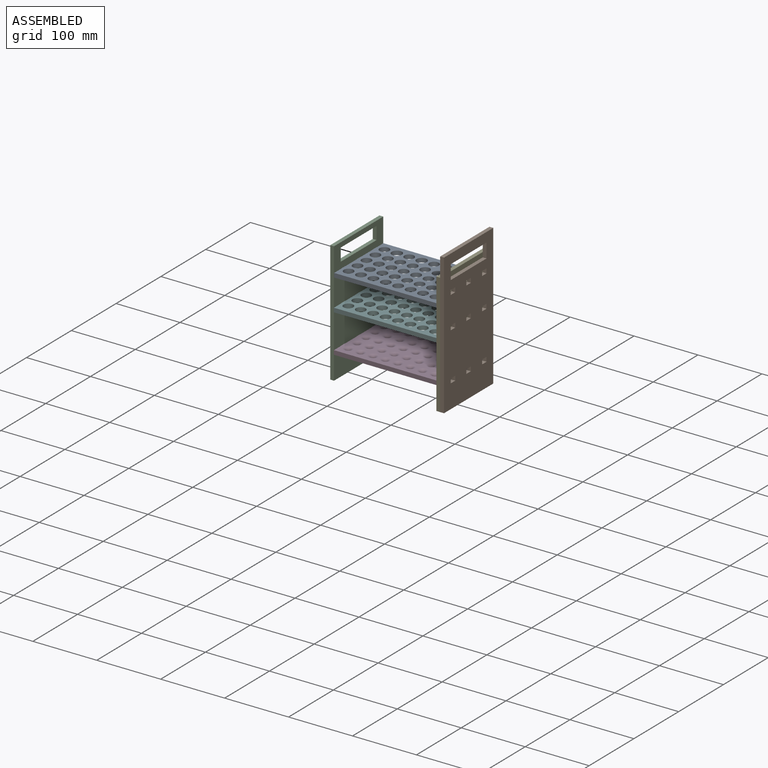
[diagram: assembled view]
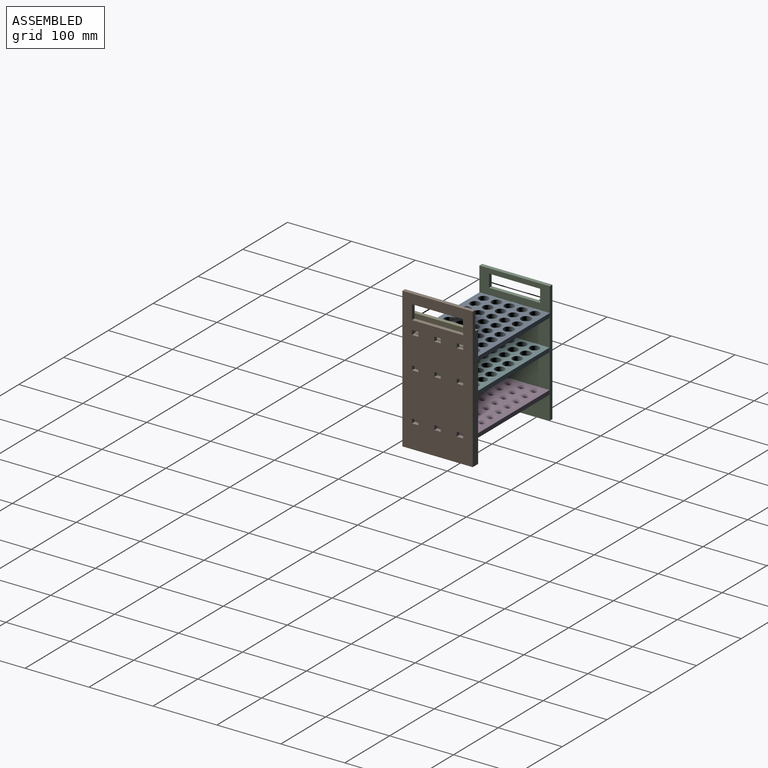
[diagram: assembled view, second angle]
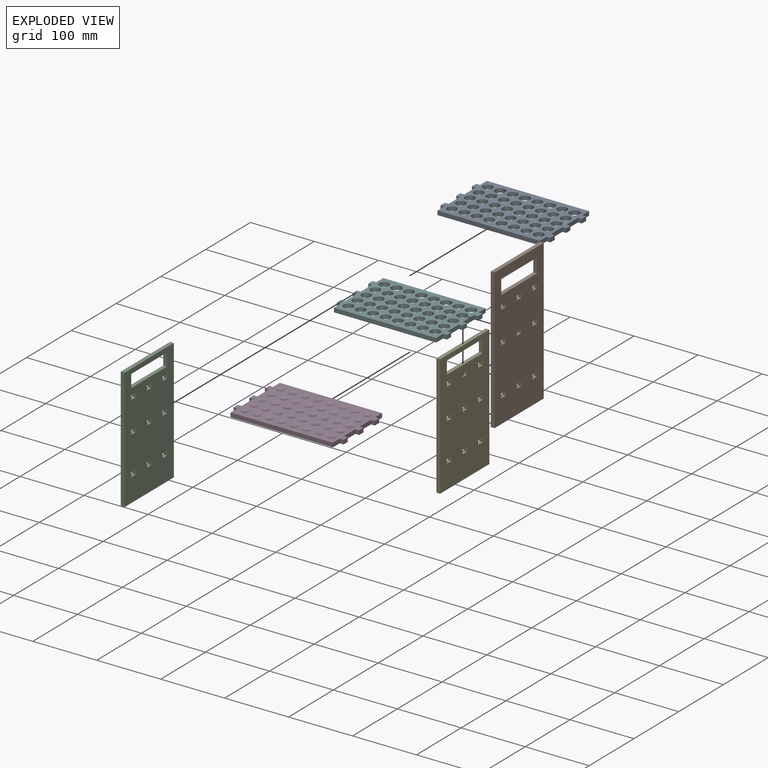
[diagram: exploded view]
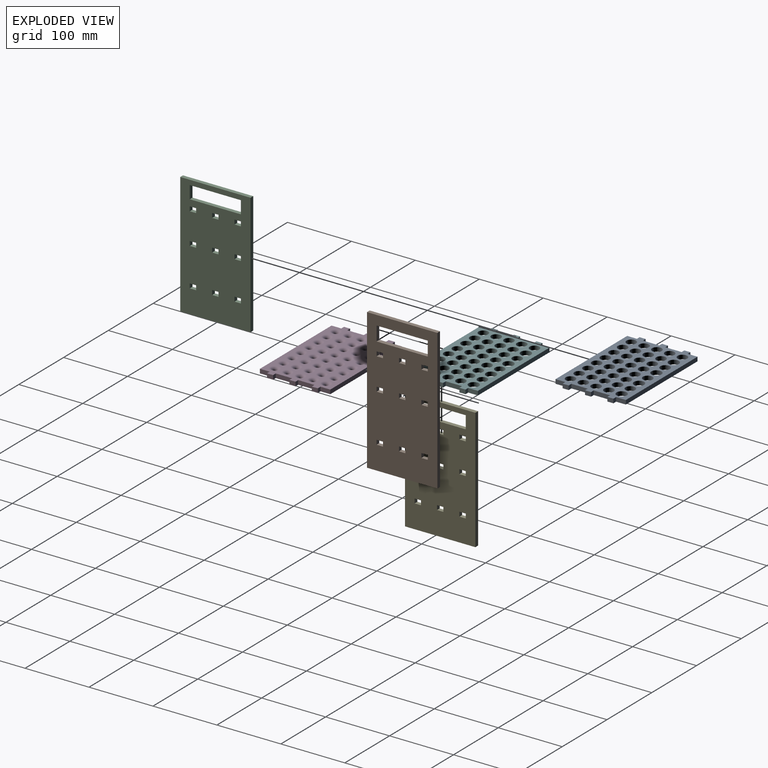
[diagram: exploded view, second angle]
ASSEMBLY  parts=6 mates=5
PART A: 70 faces, bbox 172x110x6.5 mm
  f0: plane 172x110mm, normal (0,0,1), area 10778mm2, adj f2,f3,f4,f5,f6,f7,f8,f9
  f1: plane 172x110mm, normal (0,0,-1), area 10778mm2, adj f2,f3,f4,f5,f6,f7,f8,f9
  f2: plane 15.25x6.5mm, normal (1,0,0), area 99.1mm2, adj f0,f1,f8,f27
  f3: plane 25.5x6.5mm, normal (1,0,0), area 165.7mm2, adj f0,f1,f25,f28
  f4: plane 25.5x6.5mm, normal (1,0,0), area 165.7mm2, adj f0,f1,f21,f24
  f5: plane 25.5x6.5mm, normal (-1,0,0), area 165.7mm2, adj f0,f1,f16,f19
  f6: plane 25.5x6.5mm, normal (-1,0,0), area 165.7mm2, adj f0,f1,f12,f15
  f7: plane 15.25x6.5mm, normal (-1,0,0), area 99.1mm2, adj f0,f1,f8,f13
  f8: plane 160x6.5mm, normal (0,1,0), area 1040mm2, adj f0,f1,f2,f7
  f9: plane 15.25x6.5mm, normal (-1,0,0), area 99.1mm2, adj f0,f1,f10,f18
  f10: plane 160x6.5mm, normal (0,-1,0), area 1040mm2, adj f0,f1,f9,f11
  f11: plane 15.25x6.5mm, normal (1,0,0), area 99.1mm2, adj f0,f1,f10,f22
  f12: plane 6.5x6mm, normal (0,-1,0), area 39mm2, adj f0,f1,f6,f14
  f13: plane 6.5x6mm, normal (0,1,0), area 39mm2, adj f0,f1,f7,f14
  f14: plane 9.5x6.5mm, normal (-1,0,0), area 61.7mm2, adj f0,f1,f12,f13
  f15: plane 6.5x6mm, normal (0,1,0), area 39mm2, adj f0,f1,f6,f17
  f16: plane 6.5x6mm, normal (0,-1,0), area 39mm2, adj f0,f1,f5,f17
  f17: plane 9.5x6.5mm, normal (-1,0,0), area 61.8mm2, adj f0,f1,f15,f16
  f18: plane 6.5x6mm, normal (0,-1,0), area 39mm2, adj f0,f1,f9,f20
  f19: plane 6.5x6mm, normal (0,1,0), area 39mm2, adj f0,f1,f5,f20
  f20: plane 9.5x6.5mm, normal (-1,0,0), area 61.8mm2, adj f0,f1,f18,f19
  f21: plane 6.5x6mm, normal (0,1,0), area 39mm2, adj f0,f1,f4,f23
  f22: plane 6.5x6mm, normal (0,-1,0), area 39mm2, adj f0,f1,f11,f23
  f23: plane 9.5x6.5mm, normal (1,0,0), area 61.7mm2, adj f0,f1,f21,f22
  f24: plane 6.5x6mm, normal (0,-1,0), area 39mm2, adj f0,f1,f4,f26
  f25: plane 6.5x6mm, normal (0,1,0), area 39mm2, adj f0,f1,f3,f26
  f26: plane 9.5x6.5mm, normal (1,0,0), area 61.8mm2, adj f0,f1,f24,f25
  f27: plane 6.5x6mm, normal (0,1,0), area 39mm2, adj f0,f1,f2,f29
  f28: plane 6.5x6mm, normal (0,-1,0), area 39mm2, adj f0,f1,f3,f29
  f29: plane 9.5x6.5mm, normal (1,0,0), area 61.8mm2, adj f0,f1,f27,f28
  f30: cylinder r=7.5mm len=15mm, axis (0,0,1), area 306.3mm2, adj f0,f1
  f31: cylinder r=7.5mm len=15mm, axis (0,0,1), area 306.3mm2, adj f0,f1
  f32: cylinder r=7.5mm len=15mm, axis (0,0,1), area 306.3mm2, adj f0,f1
  f33: cylinder r=7.5mm len=15mm, axis (0,0,1), area 306.3mm2, adj f0,f1
  f34: cylinder r=7.5mm len=15mm, axis (0,0,1), area 306.3mm2, adj f0,f1
  f35: cylinder r=7.5mm len=15mm, axis (0,0,1), area 306.3mm2, adj f0,f1
  f36: cylinder r=7.5mm len=15mm, axis (0,0,1), area 306.3mm2, adj f0,f1
  f37: cylinder r=7.5mm len=15mm, axis (0,0,1), area 306.3mm2, adj f0,f1
  f38: cylinder r=7.5mm len=15mm, axis (0,0,1), area 306.3mm2, adj f0,f1
  f39: cylinder r=7.5mm len=15mm, axis (0,0,1), area 306.3mm2, adj f0,f1
  f40: cylinder r=7.5mm len=15mm, axis (0,0,1), area 306.3mm2, adj f0,f1
  f41: cylinder r=7.5mm len=15mm, axis (0,0,1), area 306.3mm2, adj f0,f1
  f42: cylinder r=7.5mm len=15mm, axis (0,0,1), area 306.3mm2, adj f0,f1
  f43: cylinder r=7.5mm len=15mm, axis (0,0,1), area 306.3mm2, adj f0,f1
  f44: cylinder r=7.5mm len=15mm, axis (0,0,1), area 306.3mm2, adj f0,f1
  f45: cylinder r=7.5mm len=15mm, axis (0,0,1), area 306.3mm2, adj f0,f1
  f46: cylinder r=7.5mm len=15mm, axis (0,0,1), area 306.3mm2, adj f0,f1
  f47: cylinder r=7.99mm len=15.98mm, axis (0,0,1), area 326.3mm2, adj f0,f1
  f48: cylinder r=7.5mm len=15mm, axis (0,0,1), area 306.3mm2, adj f0,f1
  f49: cylinder r=7.99mm len=15.98mm, axis (0,0,1), area 326.3mm2, adj f0,f1
  f50: cylinder r=7.5mm len=15mm, axis (0,0,1), area 306.3mm2, adj f0,f1
  f51: cylinder r=7.99mm len=15.98mm, axis (0,0,1), area 326.3mm2, adj f0,f1
  f52: cylinder r=7.5mm len=15mm, axis (0,0,1), area 306.3mm2, adj f0,f1
  f53: cylinder r=7.99mm len=15.98mm, axis (0,0,1), area 326.3mm2, adj f0,f1
  f54: cylinder r=7.5mm len=15mm, axis (0,0,1), area 306.3mm2, adj f0,f1
  f55: cylinder r=7.5mm len=15mm, axis (0,0,1), area 306.3mm2, adj f0,f1
  f56: cylinder r=7.5mm len=15mm, axis (0,0,1), area 306.3mm2, adj f0,f1
  f57: cylinder r=7.5mm len=15mm, axis (0,0,1), area 306.3mm2, adj f0,f1
  f58: cylinder r=7.5mm len=15mm, axis (0,0,1), area 306.3mm2, adj f0,f1
  f59: cylinder r=7.5mm len=15mm, axis (0,0,1), area 306.3mm2, adj f0,f1
  f60: cylinder r=7.5mm len=15mm, axis (0,0,1), area 306.3mm2, adj f0,f1
  f61: cylinder r=7.5mm len=15mm, axis (0,0,1), area 306.3mm2, adj f0,f1
  f62: cylinder r=7.5mm len=15mm, axis (0,0,1), area 306.3mm2, adj f0,f1
  f63: cylinder r=7.5mm len=15mm, axis (0,0,1), area 306.3mm2, adj f0,f1
  f64: cylinder r=7.5mm len=15mm, axis (0,0,1), area 306.3mm2, adj f0,f1
  f65: cylinder r=7.5mm len=15mm, axis (0,0,1), area 306.3mm2, adj f0,f1
  f66: cylinder r=7.5mm len=15mm, axis (0,0,1), area 306.3mm2, adj f0,f1
  f67: cylinder r=7.5mm len=15mm, axis (0,0,1), area 306.3mm2, adj f0,f1
  f68: cylinder r=7.5mm len=15mm, axis (0,0,1), area 306.3mm2, adj f0,f1
  f69: cylinder r=7.5mm len=15mm, axis (0,0,1), area 306.3mm2, adj f0,f1
PART B: 46 faces, bbox 6x110x220 mm
  f0: plane 7x6mm, normal (0,-1,0), area 42mm2, adj f1,f43,f44,f45
  f1: plane 10x6mm, normal (0,0,1), area 60mm2, adj f0,f2,f44,f45
  f2: plane 7x6mm, normal (0,1,0), area 42mm2, adj f1,f43,f44,f45
  f3: plane 7x6mm, normal (0,-1,0), area 42mm2, adj f4,f33,f44,f45
  f4: plane 10x6mm, normal (0,0,1), area 60mm2, adj f3,f5,f44,f45
  f5: plane 7x6mm, normal (0,1,0), area 42mm2, adj f4,f33,f44,f45
  f6: plane 7x6mm, normal (0,-1,0), area 42mm2, adj f7,f34,f44,f45
  f7: plane 10x6mm, normal (0,0,1), area 60mm2, adj f6,f8,f44,f45
  f8: plane 7x6mm, normal (0,1,0), area 42mm2, adj f7,f34,f44,f45
  f9: plane 7x6mm, normal (0,1,0), area 42mm2, adj f10,f35,f44,f45
  f10: plane 10x6mm, normal (0,0,-1), area 60mm2, adj f9,f11,f44,f45
  f11: plane 7x6mm, normal (0,-1,0), area 42mm2, adj f10,f35,f44,f45
  f12: plane 7x6mm, normal (0,1,0), area 42mm2, adj f13,f36,f44,f45
  f13: plane 10x6mm, normal (0,0,-1), area 60mm2, adj f12,f14,f44,f45
  f14: plane 7x6mm, normal (0,-1,0), area 42mm2, adj f13,f36,f44,f45
  f15: plane 7x6mm, normal (0,1,0), area 42mm2, adj f16,f37,f44,f45
  f16: plane 10x6mm, normal (0,0,-1), area 60mm2, adj f15,f17,f44,f45
  f17: plane 7x6mm, normal (0,-1,0), area 42mm2, adj f16,f37,f44,f45
  f18: plane 7x6mm, normal (0,1,0), area 42mm2, adj f19,f38,f44,f45
  f19: plane 10x6mm, normal (0,0,-1), area 60mm2, adj f18,f20,f44,f45
  f20: plane 7x6mm, normal (0,-1,0), area 42mm2, adj f19,f38,f44,f45
  f21: plane 7x6mm, normal (0,1,0), area 42mm2, adj f22,f39,f44,f45
  f22: plane 10x6mm, normal (0,0,-1), area 60mm2, adj f21,f23,f44,f45
  f23: plane 7x6mm, normal (0,-1,0), area 42mm2, adj f22,f39,f44,f45
  f24: plane 7x6mm, normal (0,1,0), area 42mm2, adj f25,f40,f44,f45
  f25: plane 10x6mm, normal (0,0,-1), area 60mm2, adj f24,f26,f44,f45
  f26: plane 7x6mm, normal (0,-1,0), area 42mm2, adj f25,f40,f44,f45
  f27: plane 110x6mm, normal (0,0,1), area 660mm2, adj f28,f41,f44,f45
  f28: plane 220x6mm, normal (0,-1,0), area 1320mm2, adj f27,f29,f44,f45
  f29: plane 110x6mm, normal (0,0,-1), area 660mm2, adj f28,f41,f44,f45
  f30: plane 80x6mm, normal (0,0,1), area 480mm2, adj f31,f42,f44,f45
  f31: plane 22.5x6mm, normal (0,1,0), area 135mm2, adj f30,f32,f44,f45
  f32: plane 80x6mm, normal (0,0,-1), area 480mm2, adj f31,f42,f44,f45
  f33: plane 10x6mm, normal (0,0,-1), area 60mm2, adj f3,f5,f44,f45
  f34: plane 10x6mm, normal (0,0,-1), area 60mm2, adj f6,f8,f44,f45
  f35: plane 10x6mm, normal (0,0,1), area 60mm2, adj f9,f11,f44,f45
  f36: plane 10x6mm, normal (0,0,1), area 60mm2, adj f12,f14,f44,f45
  f37: plane 10x6mm, normal (0,0,1), area 60mm2, adj f15,f17,f44,f45
  f38: plane 10x6mm, normal (0,0,1), area 60mm2, adj f18,f20,f44,f45
  f39: plane 10x6mm, normal (0,0,1), area 60mm2, adj f21,f23,f44,f45
  f40: plane 10x6mm, normal (0,0,1), area 60mm2, adj f24,f26,f44,f45
  f41: plane 220x6mm, normal (0,1,0), area 1320mm2, adj f27,f29,f44,f45
  f42: plane 22.5x6mm, normal (0,-1,0), area 135mm2, adj f30,f32,f44,f45
  f43: plane 10x6mm, normal (0,0,-1), area 60mm2, adj f0,f2,f44,f45
  f44: plane 220x110mm, normal (1,0,0), area 21770mm2, adj f0,f1,f2,f3,f4,f5,f6,f7
  f45: plane 220x110mm, normal (-1,0,0), area 21770mm2, adj f0,f1,f2,f3,f4,f5,f6,f7
PART C: 46 faces, bbox 6x110x190 mm
  f0: plane 7x6mm, normal (0,-1,0), area 42mm2, adj f1,f43,f44,f45
  f1: plane 10x6mm, normal (0,0,1), area 60mm2, adj f0,f2,f44,f45
  f2: plane 7x6mm, normal (0,1,0), area 42mm2, adj f1,f43,f44,f45
  f3: plane 7x6mm, normal (0,-1,0), area 42mm2, adj f4,f33,f44,f45
  f4: plane 10x6mm, normal (0,0,1), area 60mm2, adj f3,f5,f44,f45
  f5: plane 7x6mm, normal (0,1,0), area 42mm2, adj f4,f33,f44,f45
  f6: plane 7x6mm, normal (0,-1,0), area 42mm2, adj f7,f34,f44,f45
  f7: plane 10x6mm, normal (0,0,1), area 60mm2, adj f6,f8,f44,f45
  f8: plane 7x6mm, normal (0,1,0), area 42mm2, adj f7,f34,f44,f45
  f9: plane 7x6mm, normal (0,1,0), area 42mm2, adj f10,f35,f44,f45
  f10: plane 10x6mm, normal (0,0,-1), area 60mm2, adj f9,f11,f44,f45
  f11: plane 7x6mm, normal (0,-1,0), area 42mm2, adj f10,f35,f44,f45
  f12: plane 7x6mm, normal (0,1,0), area 42mm2, adj f13,f36,f44,f45
  f13: plane 10x6mm, normal (0,0,-1), area 60mm2, adj f12,f14,f44,f45
  f14: plane 7x6mm, normal (0,-1,0), area 42mm2, adj f13,f36,f44,f45
  f15: plane 7x6mm, normal (0,1,0), area 42mm2, adj f16,f37,f44,f45
  f16: plane 10x6mm, normal (0,0,-1), area 60mm2, adj f15,f17,f44,f45
  f17: plane 7x6mm, normal (0,-1,0), area 42mm2, adj f16,f37,f44,f45
  f18: plane 7x6mm, normal (0,1,0), area 42mm2, adj f19,f38,f44,f45
  f19: plane 10x6mm, normal (0,0,-1), area 60mm2, adj f18,f20,f44,f45
  f20: plane 7x6mm, normal (0,-1,0), area 42mm2, adj f19,f38,f44,f45
  f21: plane 7x6mm, normal (0,1,0), area 42mm2, adj f22,f39,f44,f45
  f22: plane 10x6mm, normal (0,0,-1), area 60mm2, adj f21,f23,f44,f45
  f23: plane 7x6mm, normal (0,-1,0), area 42mm2, adj f22,f39,f44,f45
  f24: plane 7x6mm, normal (0,1,0), area 42mm2, adj f25,f40,f44,f45
  f25: plane 10x6mm, normal (0,0,-1), area 60mm2, adj f24,f26,f44,f45
  f26: plane 7x6mm, normal (0,-1,0), area 42mm2, adj f25,f40,f44,f45
  f27: plane 110x6mm, normal (0,0,1), area 660mm2, adj f28,f41,f44,f45
  f28: plane 190x6mm, normal (0,-1,0), area 1140mm2, adj f27,f29,f44,f45
  f29: plane 110x6mm, normal (0,0,-1), area 660mm2, adj f28,f41,f44,f45
  f30: plane 20x6mm, normal (0,1,0), area 120mm2, adj f31,f42,f44,f45
  f31: plane 80x6mm, normal (0,0,-1), area 480mm2, adj f30,f32,f44,f45
  f32: plane 20x6mm, normal (0,-1,0), area 120mm2, adj f31,f42,f44,f45
  f33: plane 10x6mm, normal (0,0,-1), area 60mm2, adj f3,f5,f44,f45
  f34: plane 10x6mm, normal (0,0,-1), area 60mm2, adj f6,f8,f44,f45
  f35: plane 10x6mm, normal (0,0,1), area 60mm2, adj f9,f11,f44,f45
  f36: plane 10x6mm, normal (0,0,1), area 60mm2, adj f12,f14,f44,f45
  f37: plane 10x6mm, normal (0,0,1), area 60mm2, adj f15,f17,f44,f45
  f38: plane 10x6mm, normal (0,0,1), area 60mm2, adj f18,f20,f44,f45
  f39: plane 10x6mm, normal (0,0,1), area 60mm2, adj f21,f23,f44,f45
  f40: plane 10x6mm, normal (0,0,1), area 60mm2, adj f24,f26,f44,f45
  f41: plane 190x6mm, normal (0,1,0), area 1140mm2, adj f27,f29,f44,f45
  f42: plane 80x6mm, normal (0,0,1), area 480mm2, adj f30,f32,f44,f45
  f43: plane 10x6mm, normal (0,0,-1), area 60mm2, adj f0,f2,f44,f45
  f44: plane 190x110mm, normal (1,0,0), area 18670mm2, adj f0,f1,f2,f3,f4,f5,f6,f7
  f45: plane 190x110mm, normal (-1,0,0), area 18670mm2, adj f0,f1,f2,f3,f4,f5,f6,f7
PART D: 110 faces, bbox 172x110x8.6 mm
  f0: plane 15.25x6.5mm, normal (1,0,0), area 99.1mm2, adj f6,f10,f11,f27
  f1: plane 25.5x6.5mm, normal (1,0,0), area 165.7mm2, adj f10,f11,f25,f28
  f2: plane 25.5x6.5mm, normal (1,0,0), area 165.7mm2, adj f10,f11,f21,f24
  f3: plane 25.5x6.5mm, normal (-1,0,0), area 165.7mm2, adj f10,f11,f16,f19
  f4: plane 25.5x6.5mm, normal (-1,0,0), area 165.7mm2, adj f10,f11,f12,f15
  f5: plane 15.25x6.5mm, normal (-1,0,0), area 99.1mm2, adj f6,f10,f11,f13
  f6: plane 160x6.5mm, normal (0,1,0), area 1040mm2, adj f0,f5,f10,f11
  f7: plane 15.25x6.5mm, normal (-1,0,0), area 99.1mm2, adj f8,f10,f11,f18
  f8: plane 160x6.5mm, normal (0,-1,0), area 1040mm2, adj f7,f9,f10,f11
  f9: plane 15.25x6.5mm, normal (1,0,0), area 99.1mm2, adj f8,f10,f11,f22
  f10: plane 172x110mm, normal (0,0,1), area 9899.5mm2, adj f0,f1,f2,f3,f4,f5,f6,f7
  f11: plane 172x110mm, normal (0,0,-1), area 16811mm2, adj f0,f1,f2,f3,f4,f5,f6,f7
  f12: plane 6.5x6mm, normal (0,-1,0), area 39mm2, adj f4,f10,f11,f14
  f13: plane 6.5x6mm, normal (0,1,0), area 39mm2, adj f5,f10,f11,f14
  f14: plane 9.5x6.5mm, normal (-1,0,0), area 61.7mm2, adj f10,f11,f12,f13
  f15: plane 6.5x6mm, normal (0,1,0), area 39mm2, adj f4,f10,f11,f17
  f16: plane 6.5x6mm, normal (0,-1,0), area 39mm2, adj f3,f10,f11,f17
  f17: plane 9.5x6.5mm, normal (-1,0,0), area 61.8mm2, adj f10,f11,f15,f16
  f18: plane 6.5x6mm, normal (0,-1,0), area 39mm2, adj f7,f10,f11,f20
  f19: plane 6.5x6mm, normal (0,1,0), area 39mm2, adj f3,f10,f11,f20
  f20: plane 9.5x6.5mm, normal (-1,0,0), area 61.8mm2, adj f10,f11,f18,f19
  f21: plane 6.5x6mm, normal (0,1,0), area 39mm2, adj f2,f10,f11,f23
  f22: plane 6.5x6mm, normal (0,-1,0), area 39mm2, adj f9,f10,f11,f23
  f23: plane 9.5x6.5mm, normal (1,0,0), area 61.7mm2, adj f10,f11,f21,f22
  f24: plane 6.5x6mm, normal (0,-1,0), area 39mm2, adj f2,f10,f11,f26
  f25: plane 6.5x6mm, normal (0,1,0), area 39mm2, adj f1,f10,f11,f26
  f26: plane 9.5x6.5mm, normal (1,0,0), area 61.8mm2, adj f10,f11,f24,f25
  f27: plane 6.5x6mm, normal (0,1,0), area 39mm2, adj f0,f10,f11,f29
  f28: plane 6.5x6mm, normal (0,-1,0), area 39mm2, adj f1,f10,f11,f29
  f29: plane 9.5x6.5mm, normal (1,0,0), area 61.8mm2, adj f10,f11,f27,f28
  f30: cylinder r=3mm len=6mm, axis (0,0,-1), area 28.3mm2, adj f11,f109
  f31: cylinder r=3mm len=6mm, axis (0,0,-1), area 28.3mm2, adj f11,f85
  f32: cylinder r=3mm len=6mm, axis (0,0,-1), area 28.3mm2, adj f11,f84
  f33: cylinder r=3mm len=6mm, axis (0,0,-1), area 28.3mm2, adj f11,f83
  f34: cylinder r=3mm len=6mm, axis (0,0,-1), area 28.3mm2, adj f11,f82
  f35: cylinder r=3mm len=6mm, axis (0,0,-1), area 28.3mm2, adj f11,f81
  f36: cylinder r=3mm len=6mm, axis (0,0,-1), area 28.3mm2, adj f11,f80
  f37: cylinder r=3mm len=6mm, axis (0,0,-1), area 28.3mm2, adj f11,f79
  f38: cylinder r=3mm len=6mm, axis (0,0,-1), area 28.3mm2, adj f11,f108
  f39: cylinder r=3mm len=6mm, axis (0,0,-1), area 28.3mm2, adj f11,f107
  f40: cylinder r=3mm len=6mm, axis (0,0,-1), area 28.3mm2, adj f11,f106
  f41: cylinder r=3mm len=6mm, axis (0,0,-1), area 28.3mm2, adj f11,f105
  f42: cylinder r=3mm len=6mm, axis (0,0,-1), area 28.3mm2, adj f11,f104
  f43: cylinder r=3mm len=6mm, axis (0,0,-1), area 28.3mm2, adj f11,f103
  f44: cylinder r=3mm len=6mm, axis (0,0,-1), area 28.3mm2, adj f11,f102
  f45: cylinder r=3mm len=6mm, axis (0,0,-1), area 28.3mm2, adj f11,f101
  f46: cylinder r=3mm len=6mm, axis (0,0,-1), area 28.3mm2, adj f11,f100
  f47: cylinder r=3mm len=6mm, axis (0,0,-1), area 28.3mm2, adj f11,f99
  f48: cylinder r=3mm len=6mm, axis (0,0,-1), area 28.3mm2, adj f11,f98
  f49: cylinder r=3mm len=6mm, axis (0,0,-1), area 28.3mm2, adj f11,f97
  f50: cylinder r=3mm len=6mm, axis (0,0,-1), area 28.3mm2, adj f11,f96
  f51: cylinder r=3mm len=6mm, axis (0,0,-1), area 28.3mm2, adj f11,f95
  f52: cylinder r=3mm len=6mm, axis (0,0,-1), area 28.3mm2, adj f11,f94
  f53: cylinder r=3mm len=6mm, axis (0,0,-1), area 28.3mm2, adj f11,f93
  f54: cylinder r=3mm len=6mm, axis (0,0,-1), area 28.3mm2, adj f11,f78
  f55: cylinder r=3mm len=6mm, axis (0,0,-1), area 28.3mm2, adj f11,f77
  f56: cylinder r=3mm len=6mm, axis (0,0,-1), area 28.3mm2, adj f11,f76
  f57: cylinder r=3mm len=6mm, axis (0,0,-1), area 28.3mm2, adj f11,f75
  f58: cylinder r=3mm len=6mm, axis (0,0,-1), area 28.3mm2, adj f11,f74
  f59: cylinder r=3mm len=6mm, axis (0,0,-1), area 28.3mm2, adj f11,f73
  f60: cylinder r=3mm len=6mm, axis (0,0,-1), area 28.3mm2, adj f11,f72
  f61: cylinder r=3mm len=6mm, axis (0,0,-1), area 28.3mm2, adj f11,f71
  f62: cylinder r=3mm len=6mm, axis (0,0,-1), area 28.3mm2, adj f11,f70
  f63: cylinder r=3mm len=6mm, axis (0,0,-1), area 28.3mm2, adj f11,f92
  f64: cylinder r=3mm len=6mm, axis (0,0,-1), area 28.3mm2, adj f11,f91
  f65: cylinder r=3mm len=6mm, axis (0,0,-1), area 28.3mm2, adj f11,f90
  f66: cylinder r=3mm len=6mm, axis (0,0,-1), area 28.3mm2, adj f11,f89
  f67: cylinder r=3mm len=6mm, axis (0,0,-1), area 28.3mm2, adj f11,f88
  f68: cylinder r=3mm len=6mm, axis (0,0,-1), area 28.3mm2, adj f11,f87
  f69: cylinder r=3mm len=6mm, axis (0,0,-1), area 28.3mm2, adj f11,f86
  f70: torus R=8mm, axis (0,0,1), area 237.7mm2, adj f10,f62
  f71: torus R=8mm, axis (0,0,1), area 237.7mm2, adj f10,f61
  f72: torus R=8mm, axis (0,0,1), area 237.7mm2, adj f10,f60
  f73: torus R=8mm, axis (0,0,1), area 237.7mm2, adj f10,f59
  f74: torus R=8mm, axis (0,0,1), area 237.7mm2, adj f10,f58
  f75: torus R=8mm, axis (0,0,1), area 237.7mm2, adj f10,f57
  f76: torus R=8mm, axis (0,0,1), area 237.7mm2, adj f10,f56
  f77: torus R=8mm, axis (0,0,1), area 237.7mm2, adj f10,f55
  f78: torus R=8mm, axis (0,0,1), area 237.7mm2, adj f10,f54
  f79: torus R=8mm, axis (0,0,1), area 237.7mm2, adj f10,f37
  f80: torus R=8mm, axis (0,0,1), area 237.7mm2, adj f10,f36
  f81: torus R=8mm, axis (0,0,1), area 237.7mm2, adj f10,f35
  f82: torus R=8mm, axis (0,0,1), area 237.7mm2, adj f10,f34
  f83: torus R=8mm, axis (0,0,1), area 237.7mm2, adj f10,f33
  f84: torus R=8mm, axis (0,0,1), area 237.7mm2, adj f10,f32
  f85: torus R=8mm, axis (0,0,1), area 237.7mm2, adj f10,f31
  f86: torus R=8mm, axis (0,0,1), area 237.7mm2, adj f10,f69
  f87: torus R=8mm, axis (0,0,1), area 237.7mm2, adj f10,f68
  f88: torus R=8mm, axis (0,0,1), area 237.7mm2, adj f10,f67
  f89: torus R=8mm, axis (0,0,1), area 237.7mm2, adj f10,f66
  f90: torus R=8mm, axis (0,0,1), area 237.7mm2, adj f10,f65
  f91: torus R=8mm, axis (0,0,1), area 237.7mm2, adj f10,f64
  f92: torus R=8mm, axis (0,0,1), area 237.7mm2, adj f10,f63
  f93: torus R=8mm, axis (0,0,1), area 237.7mm2, adj f10,f53
  f94: torus R=8mm, axis (0,0,1), area 237.7mm2, adj f10,f52
  f95: torus R=8mm, axis (0,0,1), area 237.7mm2, adj f10,f51
  f96: torus R=8mm, axis (0,0,1), area 237.7mm2, adj f10,f50
  f97: torus R=8mm, axis (0,0,1), area 237.7mm2, adj f10,f49
  f98: torus R=8mm, axis (0,0,1), area 237.7mm2, adj f10,f48
  f99: torus R=8mm, axis (0,0,1), area 237.7mm2, adj f10,f47
  f100: torus R=8mm, axis (0,0,1), area 237.7mm2, adj f10,f46
  f101: torus R=8mm, axis (0,0,1), area 237.7mm2, adj f10,f45
  f102: torus R=8mm, axis (0,0,1), area 237.7mm2, adj f10,f44
  f103: torus R=8mm, axis (0,0,1), area 237.7mm2, adj f10,f43
  f104: torus R=8mm, axis (0,0,1), area 237.7mm2, adj f10,f42
  f105: torus R=8mm, axis (0,0,1), area 237.7mm2, adj f10,f41
  f106: torus R=8mm, axis (0,0,1), area 237.7mm2, adj f10,f40
  f107: torus R=8mm, axis (0,0,1), area 237.7mm2, adj f10,f39
  f108: torus R=8mm, axis (0,0,1), area 237.7mm2, adj f10,f38
  f109: torus R=8mm, axis (0,0,1), area 237.7mm2, adj f10,f30
PART E: same geometry as C
PART F: same geometry as A
PLACE A t=(190.57,213.02,142.98)mm
PLACE B t=(276.57,205.27,60.02)mm
PLACE C t=(104.57,205.27,45.02)mm
PLACE D t=(190.57,212.52,33.98)mm
PLACE E t=(270.57,205.27,45.02)mm
PLACE F t=(190.57,212.52,93.98)mm
MATE fastened A.f21 <-> E.f3  axis (0,1,0) through (273.57,182.77,146.23)mm
MATE fastened D.f22 <-> E.f8  axis (0,-1,0) through (273.57,172.77,37.23)mm
MATE fastened F.f22 <-> E.f2  axis (0,-1,0) through (273.57,172.77,97.23)mm
MATE fastened B.f45 <-> E.f44  axis (-1,0,0) through (276.57,157.77,-2.77)mm
MATE fastened D.f18 <-> C.f8  axis (0,-1,0) through (107.57,172.77,37.23)mm
